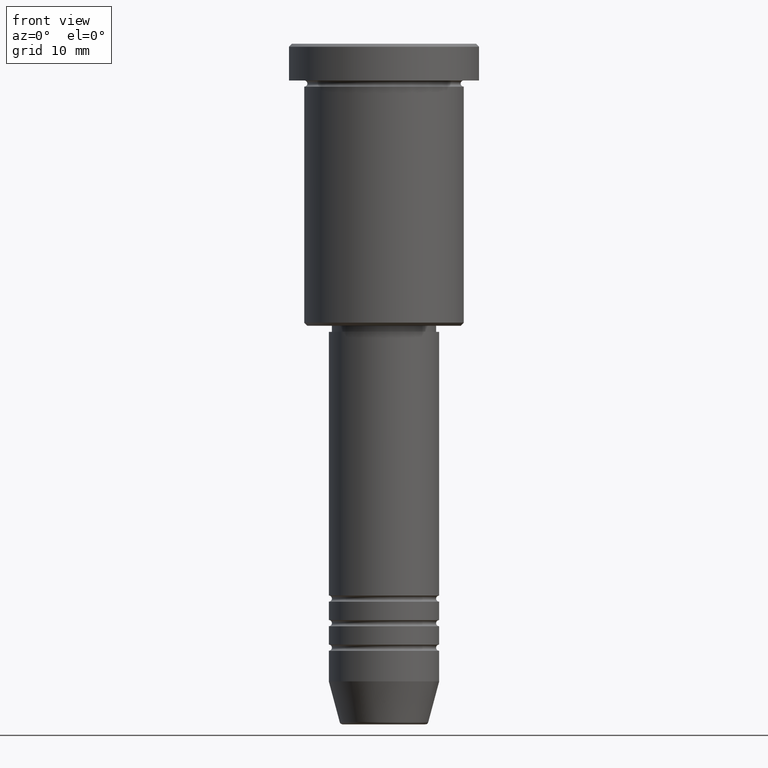
[diagram: clean part render]
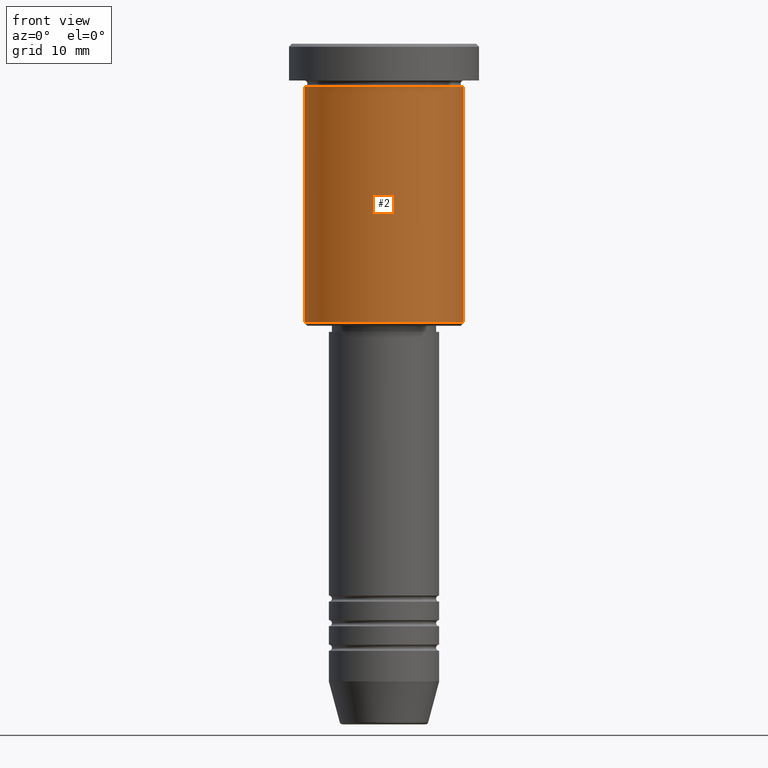
[diagram: same view with one face highlighted and labeled with its STEP entity id]
A machine part, front view. The second image highlights one B-rep face of the part: STEP entity #2.
In plain terms, the highlighted cylindrical surface (partial cylindrical patch) has radius 13 mm, axis along (-0, -0, 1).
Its self-contained STEP definition (entity closure, byte-faithful):
#2 = ADVANCED_FACE ( 'NONE', ( #635 ), #638, .T. ) ;
#12 = AXIS2_PLACEMENT_3D ( 'NONE', #82, #725, #798 ) ;
#15 = AXIS2_PLACEMENT_3D ( 'NONE', #861, #214, #670 ) ;
#25 = ORIENTED_EDGE ( 'NONE', *, *, #506, .T. ) ;
#26 = CARTESIAN_POINT ( 'NONE',  ( -13.00000000000000178, 1.592040838891559293E-15, -6.999999999999995559 ) ) ;
#59 = CARTESIAN_POINT ( 'NONE',  ( 13.00000000000000178, 0.000000000000000000, -45.49999999999997868 ) ) ;
#70 = ORIENTED_EDGE ( 'NONE', *, *, #1163, .F. ) ;
#82 = CARTESIAN_POINT ( 'NONE',  ( 0.000000000000000000, 0.000000000000000000, -45.49999999999997868 ) ) ;
#90 = CARTESIAN_POINT ( 'NONE',  ( -13.00000000000000178, 1.592040838891559293E-15, 0.000000000000000000 ) ) ;
#171 = CARTESIAN_POINT ( 'NONE',  ( 13.00000000000000178, 0.000000000000000000, -6.999999999999995559 ) ) ;
#202 = EDGE_CURVE ( 'NONE', #329, #503, #363, .T. ) ;
#214 = DIRECTION ( 'NONE',  ( -0.000000000000000000, -0.000000000000000000, 1.000000000000000000 ) ) ;
#272 = LINE ( 'NONE', #90, #1119 ) ;
#329 = VERTEX_POINT ( 'NONE', #59 ) ;
#363 = LINE ( 'NONE', #441, #489 ) ;
#381 = CIRCLE ( 'NONE', #12, 13.00000000000000178 ) ;
#390 = CARTESIAN_POINT ( 'NONE',  ( -13.00000000000000178, 1.592040838891559293E-15, -45.49999999999997868 ) ) ;
#407 = ORIENTED_EDGE ( 'NONE', *, *, #202, .T. ) ;
#441 = CARTESIAN_POINT ( 'NONE',  ( 13.00000000000000178, 0.000000000000000000, 0.000000000000000000 ) ) ;
#489 = VECTOR ( 'NONE', #526, 1000.000000000000000 ) ;
#503 = VERTEX_POINT ( 'NONE', #171 ) ;
#506 = EDGE_CURVE ( 'NONE', #699, #329, #381, .T. ) ;
#526 = DIRECTION ( 'NONE',  ( -0.000000000000000000, -0.000000000000000000, 1.000000000000000000 ) ) ;
#635 = FACE_OUTER_BOUND ( 'NONE', #1024, .T. ) ;
#638 = CYLINDRICAL_SURFACE ( 'NONE', #900, 13.00000000000000178 ) ;
#670 = DIRECTION ( 'NONE',  ( 1.000000000000000000, 0.000000000000000000, 0.000000000000000000 ) ) ;
#692 = VERTEX_POINT ( 'NONE', #26 ) ;
#699 = VERTEX_POINT ( 'NONE', #390 ) ;
#725 = DIRECTION ( 'NONE',  ( -0.000000000000000000, -0.000000000000000000, 1.000000000000000000 ) ) ;
#728 = DIRECTION ( 'NONE',  ( 1.000000000000000000, 0.000000000000000000, 0.000000000000000000 ) ) ;
#798 = DIRECTION ( 'NONE',  ( -1.000000000000000000, 0.000000000000000000, 0.000000000000000000 ) ) ;
#804 = CARTESIAN_POINT ( 'NONE',  ( 0.000000000000000000, 0.000000000000000000, 0.000000000000000000 ) ) ;
#861 = CARTESIAN_POINT ( 'NONE',  ( 0.000000000000000000, 0.000000000000000000, -6.999999999999995559 ) ) ;
#878 = EDGE_CURVE ( 'NONE', #699, #692, #272, .T. ) ;
#900 = AXIS2_PLACEMENT_3D ( 'NONE', #804, #989, #728 ) ;
#989 = DIRECTION ( 'NONE',  ( -0.000000000000000000, -0.000000000000000000, 1.000000000000000000 ) ) ;
#991 = DIRECTION ( 'NONE',  ( -0.000000000000000000, -0.000000000000000000, 1.000000000000000000 ) ) ;
#1024 = EDGE_LOOP ( 'NONE', ( #1141, #25, #407, #70 ) ) ;
#1036 = CIRCLE ( 'NONE', #15, 13.00000000000000178 ) ;
#1119 = VECTOR ( 'NONE', #991, 1000.000000000000000 ) ;
#1141 = ORIENTED_EDGE ( 'NONE', *, *, #878, .F. ) ;
#1163 = EDGE_CURVE ( 'NONE', #692, #503, #1036, .T. ) ;